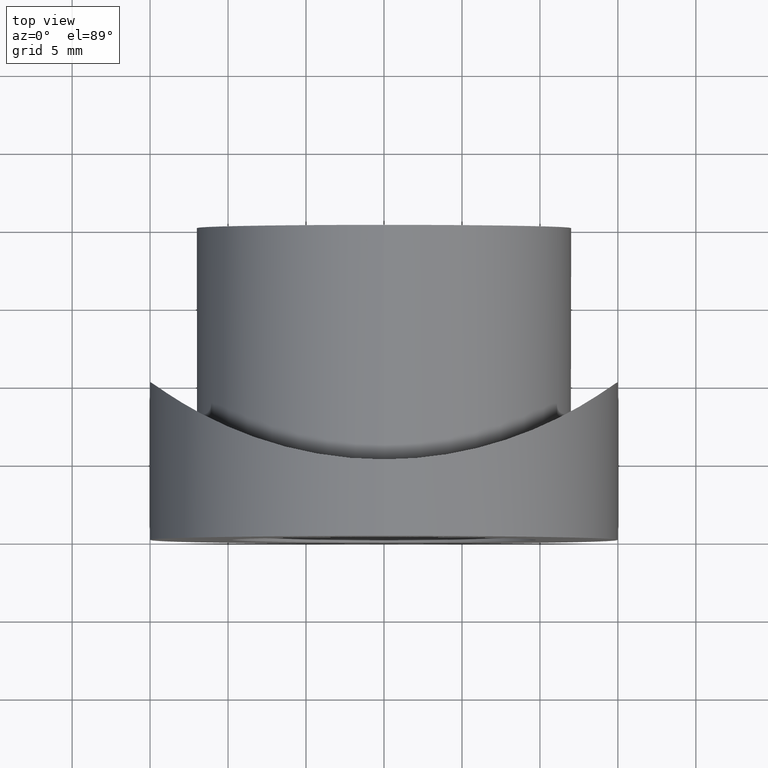
[diagram: clean part render]
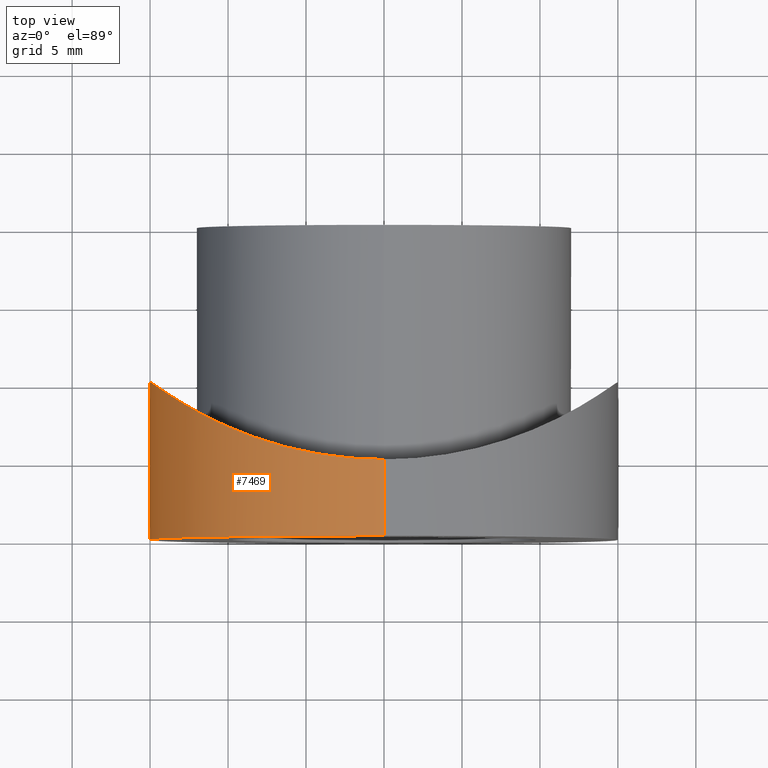
[diagram: same view with one face highlighted and labeled with its STEP entity id]
A machine part, top view. The second image highlights one B-rep face of the part: STEP entity #7469.
In plain terms, the highlighted cylindrical surface (partial cylindrical patch) has radius 15 mm, axis along (-0, -1, -0).
Its self-contained STEP definition (entity closure, byte-faithful):
#31 = DIRECTION ( 'NONE',  ( 0.0000000000000000000, 0.0000000000000000000, 1.000000000000000000 ) ) ;
#94 = CARTESIAN_POINT ( 'NONE',  ( -6.744688744990575900, 5.856562353914894100, -13.40709561244847800 ) ) ;
#144 = CARTESIAN_POINT ( 'NONE',  ( -12.71327052175960000, 8.514851390136264800, -7.975061641544691300 ) ) ;
#195 = CARTESIAN_POINT ( 'NONE',  ( -3.485658601142082300, 5.147729191260269800, 14.59802432777151700 ) ) ;
#248 = CARTESIAN_POINT ( 'NONE',  ( -4.928206650321829600, 5.403229236940585900, 14.17607781400972500 ) ) ;
#303 = CARTESIAN_POINT ( 'NONE',  ( -2.033231823859746400, 4.980389711994480000, -14.87028230816697200 ) ) ;
#584 = VERTEX_POINT ( 'NONE', #6381 ) ;
#703 = DIRECTION ( 'NONE',  ( -0.0000000000000000000, -1.000000000000000000, -0.0000000000000000000 ) ) ;
#753 = B_SPLINE_CURVE_WITH_KNOTS ( 'NONE', 3,
 ( #8017, #11515, #7191, #195, #2592, #248, #10688, #12974, #3744, #7136, #6025, #9416, #9577, #3695, #11753, #10534, #8361, #4815, #12868, #12919, #5975, #2488, #2645, #9521, #9369, #8309, #12824, #1362, #14093, #1463, #1255, #3590, #10585, #9469, #2535, #3788, #144, #11855, #14142, #1413, #7241, #10642, #4918, #13028, #6077, #94, #10742, #11802, #14199, #2432, #303, #3641, #8415, #11703 ),
 .UNSPECIFIED., .F., .F.,
 ( 4, 2, 2, 2, 2, 2, 2, 2, 2, 2, 2, 2, 2, 2, 2, 2, 2, 2, 2, 2, 2, 2, 2, 2, 2, 2, 4 ),
 ( 0.04823133613402224400, 0.05123907936154566800, 0.05274295097530738000, 0.05424682258906909200, 0.05575069420283080400, 0.05725456581659251600, 0.06026230904411594700, 0.06176618065787765900, 0.06327005227163937100, 0.06627779549916279500, 0.06778166711292450700, 0.06928553872668621900, 0.07078941034044793100, 0.07229328195420964300, 0.07379715356797135500, 0.07530102518173306700, 0.07830876840925649100, 0.07981264002301821600, 0.08131651163677992800, 0.08282038325054164000, 0.08432425486430336600, 0.08733199809182677600, 0.08883586970558848800, 0.09033974131935020000, 0.09334748454687362400, 0.09485135616063533600, 0.09635522777439704800 ),
 .UNSPECIFIED. ) ;
#1089 = ORIENTED_EDGE ( 'NONE', *, *, #5036, .T. ) ;
#1255 = CARTESIAN_POINT ( 'NONE',  ( -14.79921885837197200, 9.965408949920226100, -2.497288964207005500 ) ) ;
#1362 = CARTESIAN_POINT ( 'NONE',  ( -15.00023440368899200, 10.12341901121318500, -0.4959438168509846500 ) ) ;
#1413 = CARTESIAN_POINT ( 'NONE',  ( -11.28620759498197200, 7.696685894561030100, -9.891952616093760800 ) ) ;
#1463 = CARTESIAN_POINT ( 'NONE',  ( -14.87499014758268600, 10.02472121436572600, -1.996722211770934000 ) ) ;
#1854 = CARTESIAN_POINT ( 'NONE',  ( 0.0000000000000000000, 20.00000000000000000, -15.00000000000000000 ) ) ;
#2226 = DIRECTION ( 'NONE',  ( 0.0000000000000000000, 1.000000000000000000, 0.0000000000000000000 ) ) ;
#2432 = CARTESIAN_POINT ( 'NONE',  ( -2.535832971342855100, 5.028429145201487300, -14.79255617182440500 ) ) ;
#2488 = CARTESIAN_POINT ( 'NONE',  ( -14.47078127602599700, 9.714747681503618900, 3.979875842798211500 ) ) ;
#2535 = CARTESIAN_POINT ( 'NONE',  ( -13.42273384894690700, 8.971943897409945000, -6.713006942368406400 ) ) ;
#2592 = CARTESIAN_POINT ( 'NONE',  ( -3.976327511474934400, 5.224681369802305600, 14.47194605084688100 ) ) ;
#2645 = CARTESIAN_POINT ( 'NONE',  ( -14.59425517936051100, 9.808219587489608300, 3.500841206114691000 ) ) ;
#3026 = LINE ( 'NONE', #1854, #9362 ) ;
#3127 = ORIENTED_EDGE ( 'NONE', *, *, #6141, .T. ) ;
#3282 = VECTOR ( 'NONE', #3419, 1000.000000000000000 ) ;
#3419 = DIRECTION ( 'NONE',  ( -0.0000000000000000000, -1.000000000000000000, -0.0000000000000000000 ) ) ;
#3509 = CARTESIAN_POINT ( 'NONE',  ( 1.836970198721029600E-015, 20.00000000000000000, 15.00000000000000000 ) ) ;
#3590 = CARTESIAN_POINT ( 'NONE',  ( -14.49818271009884000, 9.734483554103404000, -3.976936265463844900 ) ) ;
#3635 = ORIENTED_EDGE ( 'NONE', *, *, #8829, .F. ) ;
#3641 = CARTESIAN_POINT ( 'NONE',  ( -1.020036110269032300, 4.916212535124859800, -14.97393915801339400 ) ) ;
#3695 = CARTESIAN_POINT ( 'NONE',  ( -10.96414786535049200, 7.529048003044865200, 10.24775029796657400 ) ) ;
#3744 = CARTESIAN_POINT ( 'NONE',  ( -6.737429021927332500, 5.854481343773116500, 13.41068191017854100 ) ) ;
#3788 = CARTESIAN_POINT ( 'NONE',  ( -12.96206115092047100, 8.671504188036420800, -7.564338497697579400 ) ) ;
#4815 = CARTESIAN_POINT ( 'NONE',  ( -12.97648002478590200, 8.673088720240599500, 7.584081200192917600 ) ) ;
#4918 = CARTESIAN_POINT ( 'NONE',  ( -9.215445849584970300, 6.711245031261310800, -11.87440116141603700 ) ) ;
#5036 = EDGE_CURVE ( 'NONE', #584, #11982, #753, .T. ) ;
#5280 = FACE_OUTER_BOUND ( 'NONE', #9328, .T. ) ;
#5423 = CARTESIAN_POINT ( 'NONE',  ( 0.0000000000000000000, 4.900000000000001200, -15.00000000000000000 ) ) ;
#5458 = CARTESIAN_POINT ( 'NONE',  ( 0.0000000000000000000, 20.00000000000000000, 0.0000000000000000000 ) ) ;
#5959 = CARTESIAN_POINT ( 'NONE',  ( 0.0000000000000000000, 0.0000000000000000000, -15.00000000000000000 ) ) ;
#5975 = CARTESIAN_POINT ( 'NONE',  ( -14.17830773658370800, 9.499268998698930500, 4.921230759617338400 ) ) ;
#6025 = CARTESIAN_POINT ( 'NONE',  ( -8.015686471919275700, 6.265060353888828500, 12.68788340814168700 ) ) ;
#6077 = CARTESIAN_POINT ( 'NONE',  ( -7.606955501343958500, 6.124891404614606600, -12.93735935300208900 ) ) ;
#6141 = EDGE_CURVE ( 'NONE', #11982, #7237, #3026, .T. ) ;
#6159 = LINE ( 'NONE', #3509, #3282 ) ;
#6381 = CARTESIAN_POINT ( 'NONE',  ( 1.222112702060550400E-014, 4.899999999999907100, 15.00000000000015100 ) ) ;
#7136 = CARTESIAN_POINT ( 'NONE',  ( -7.596956278631650700, 6.121605139970282200, 12.94316786656411200 ) ) ;
#7191 = CARTESIAN_POINT ( 'NONE',  ( -2.009586333470878100, 4.963333033387198300, 14.89866045656544100 ) ) ;
#7237 = VERTEX_POINT ( 'NONE', #5959 ) ;
#7241 = CARTESIAN_POINT ( 'NONE',  ( -10.96226445139809200, 7.528088428463292700, -10.24976243348721300 ) ) ;
#7469 = ADVANCED_FACE ( 'NONE', ( #5280 ), #14172, .T. ) ;
#8017 = CARTESIAN_POINT ( 'NONE',  ( 1.222112702060550400E-014, 4.899999999999907100, 15.00000000000015100 ) ) ;
#8309 = CARTESIAN_POINT ( 'NONE',  ( -14.97429468774816500, 10.10277575698035000, 1.014649882401019100 ) ) ;
#8361 = CARTESIAN_POINT ( 'NONE',  ( -12.17879475689336400, 8.193448989497806400, 8.769480522851020900 ) ) ;
#8415 = CARTESIAN_POINT ( 'NONE',  ( -0.5093114071485151900, 4.900000000000002100, -15.00000000000000200 ) ) ;
#8801 = ORIENTED_EDGE ( 'NONE', *, *, #12025, .T. ) ;
#8804 = DIRECTION ( 'NONE',  ( 0.0000000000000000000, 0.0000000000000000000, -1.000000000000000000 ) ) ;
#8829 = EDGE_CURVE ( 'NONE', #584, #13804, #6159, .T. ) ;
#9328 = EDGE_LOOP ( 'NONE', ( #3635, #1089, #3127, #8801 ) ) ;
#9362 = VECTOR ( 'NONE', #11279, 1000.000000000000000 ) ;
#9369 = CARTESIAN_POINT ( 'NONE',  ( -14.87108500914834300, 10.02166222284568800, 2.027275617685650100 ) ) ;
#9416 = CARTESIAN_POINT ( 'NONE',  ( -9.215978019358871600, 6.711310102898874400, 11.87435089280762000 ) ) ;
#9469 = CARTESIAN_POINT ( 'NONE',  ( -13.63526412194472900, 9.116217602719022000, -6.270487353749960100 ) ) ;
#9521 = CARTESIAN_POINT ( 'NONE',  ( -14.79437495859599500, 9.961656246074481300, 2.524805532152846900 ) ) ;
#9577 = CARTESIAN_POINT ( 'NONE',  ( -9.951083396812441300, 7.032641114253695300, 11.26461883778846100 ) ) ;
#10534 = CARTESIAN_POINT ( 'NONE',  ( -11.89448356734734000, 8.029454798731043400, 9.151484360792549600 ) ) ;
#10568 = AXIS2_PLACEMENT_3D ( 'NONE', #5458, #703, #8804 ) ;
#10585 = CARTESIAN_POINT ( 'NONE',  ( -14.20478885789113300, 9.513856397638232200, -4.917492330208339100 ) ) ;
#10642 = CARTESIAN_POINT ( 'NONE',  ( -9.949133706984953900, 7.031759451258056800, -11.26633151748089800 ) ) ;
#10688 = CARTESIAN_POINT ( 'NONE',  ( -5.391967744364475100, 5.505011332370740400, 14.00599439859665900 ) ) ;
#10742 = CARTESIAN_POINT ( 'NONE',  ( -6.300443195653847400, 5.731688517721157600, -13.62149104401984400 ) ) ;
#11143 = CIRCLE ( 'NONE', #12224, 15.00000000000000000 ) ;
#11279 = DIRECTION ( 'NONE',  ( -0.0000000000000000000, -1.000000000000000000, -0.0000000000000000000 ) ) ;
#11409 = CARTESIAN_POINT ( 'NONE',  ( 0.0000000000000000000, 0.0000000000000000000, 0.0000000000000000000 ) ) ;
#11515 = CARTESIAN_POINT ( 'NONE',  ( -1.011861050853361600, 4.900000000000000400, 15.00000000000000700 ) ) ;
#11703 = CARTESIAN_POINT ( 'NONE',  ( 0.0000000000000000000, 4.900000000000001200, -15.00000000000000000 ) ) ;
#11753 = CARTESIAN_POINT ( 'NONE',  ( -11.28779623140135200, 7.697536064171692300, 9.890099169274696700 ) ) ;
#11802 = CARTESIAN_POINT ( 'NONE',  ( -4.945377266651774100, 5.393443127212359300, -14.19526873949127900 ) ) ;
#11855 = CARTESIAN_POINT ( 'NONE',  ( -12.17926107986054000, 8.193701782501660700, -8.768948345980460200 ) ) ;
#11982 = VERTEX_POINT ( 'NONE', #5423 ) ;
#12025 = EDGE_CURVE ( 'NONE', #7237, #13804, #11143, .T. ) ;
#12224 = AXIS2_PLACEMENT_3D ( 'NONE', #11409, #2226, #31 ) ;
#12824 = CARTESIAN_POINT ( 'NONE',  ( -14.99976229252201100, 10.12304484977691200, 0.5100231395952243800 ) ) ;
#12868 = CARTESIAN_POINT ( 'NONE',  ( -13.43539385888184900, 8.976889274600161200, 6.741982475664241500 ) ) ;
#12919 = CARTESIAN_POINT ( 'NONE',  ( -14.00857885471449100, 9.376757027485110600, 5.385234668295064300 ) ) ;
#12974 = CARTESIAN_POINT ( 'NONE',  ( -6.296580876322170900, 5.730633010671341200, 13.62329859166721500 ) ) ;
#13028 = CARTESIAN_POINT ( 'NONE',  ( -8.020915733963070300, 6.266938534765381900, -12.68449337087932300 ) ) ;
#13152 = CARTESIAN_POINT ( 'NONE',  ( 1.836970198721029600E-015, 0.0000000000000000000, 15.00000000000000000 ) ) ;
#13804 = VERTEX_POINT ( 'NONE', #13152 ) ;
#14093 = CARTESIAN_POINT ( 'NONE',  ( -14.97523476638894900, 10.10352517080490700, -0.9972838979935164700 ) ) ;
#14142 = CARTESIAN_POINT ( 'NONE',  ( -11.89403955749684300, 8.029192970600108800, -9.152105301009875400 ) ) ;
#14172 = CYLINDRICAL_SURFACE ( 'NONE', #10568, 15.00000000000000000 ) ;
#14199 = CARTESIAN_POINT ( 'NONE',  ( -4.005489980454407300, 5.214022764335864800, -14.48988329273216300 ) ) ;